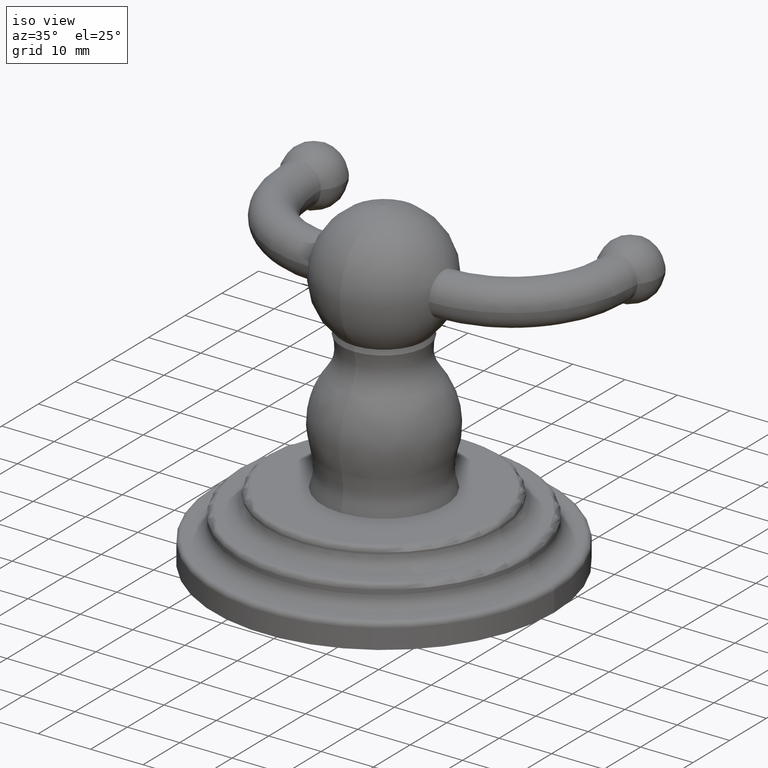
[diagram: clean part render]
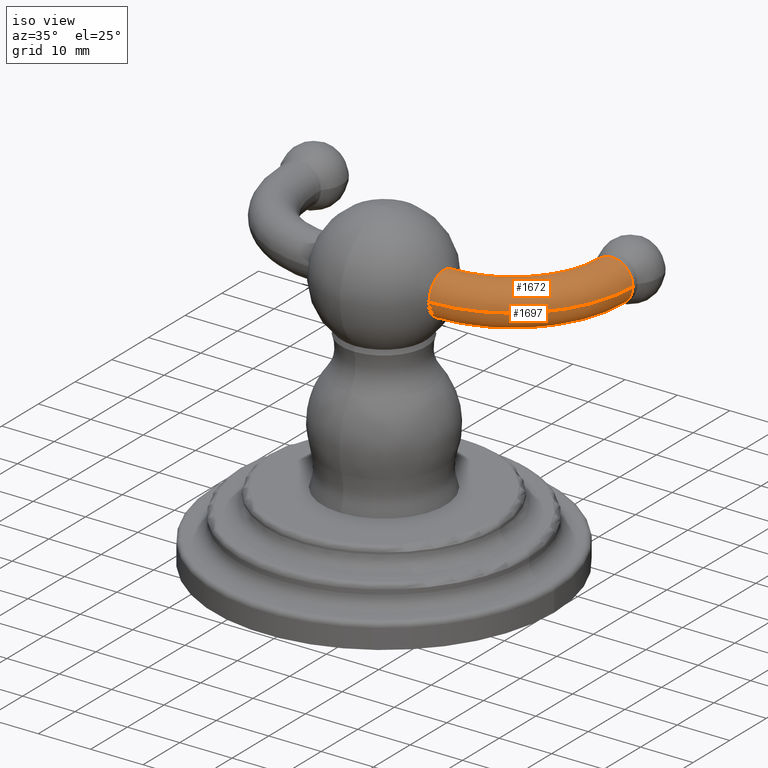
[diagram: same view with one multi-face feature highlighted, each face labeled with its STEP entity id]
A machine part, iso view. The highlighted faces form ONE feature: a constant-radius fillet chain: 2 tangent blend faces with common blend radius 4.0005 mm. The faces share edges in the B-rep.
Their STEP definitions:
[1] entity #1672 (Torus):
#668=CARTESIAN_POINT('',(4.481169236489E-1,1.575316563088E-1,1.947E0));
#669=CARTESIAN_POINT('',(4.481169236489E-1,1.575316563088E-1,1.955967580570E0));
#670=CARTESIAN_POINT('',(4.481170588089E-1,1.560209085654E-1,1.973417424200E0));
#671=CARTESIAN_POINT('',(4.481176207747E-1,1.496445510945E-1,1.998330654038E0));
#672=CARTESIAN_POINT('',(4.481184720196E-1,1.397175509616E-1,2.021131951390E0));
#673=CARTESIAN_POINT('',(4.481195601022E-1,1.265412111369E-1,2.041876586669E0));
#674=CARTESIAN_POINT('',(4.481208343643E-1,1.103675058395E-1,2.060269137305E0));
#675=CARTESIAN_POINT('',(4.481222316709E-1,9.164301840083E-2,2.075887647518E0));
#676=CARTESIAN_POINT('',(4.481237099900E-1,7.060381457947E-2,2.088510431310E0));
#677=CARTESIAN_POINT('',(4.481252021869E-1,4.795832278045E-2,2.097686955568E0));
#678=CARTESIAN_POINT('',(4.481266650665E-1,2.424989611638E-2,2.103256951497E0));
#679=CARTESIAN_POINT('',(4.481280641730E-1,3.404500046922E-5,2.105120015455E0));
#680=CARTESIAN_POINT('',(4.481293747826E-1,-2.415297950481E-2,
2.103262983074E0));
#681=CARTESIAN_POINT('',(4.481305829183E-1,-4.786400804184E-2,
2.097701372621E0));
#682=CARTESIAN_POINT('',(4.481316719486E-1,-7.051012071034E-2,
2.088531207823E0));
#683=CARTESIAN_POINT('',(4.481326308359E-1,-9.153684132768E-2,
2.075925573406E0));
#684=CARTESIAN_POINT('',(4.481334453194E-1,-1.102562344410E-1,
2.060326934470E0));
#685=CARTESIAN_POINT('',(4.481341215507E-1,-1.264364918595E-1,
2.041946848681E0));
#686=CARTESIAN_POINT('',(4.481346547289E-1,-1.396271137012E-1,
2.021207655565E0));
#687=CARTESIAN_POINT('',(4.481350467498E-1,-1.495793359329E-1,
1.998372509497E0));
#688=CARTESIAN_POINT('',(4.481352936381E-1,-1.559626857629E-1,
1.973455985663E0));
#689=CARTESIAN_POINT('',(4.481353517216E-1,-1.574792257327E-1,
1.955981758078E0));
#690=CARTESIAN_POINT('',(4.481353517216E-1,-1.574792257327E-1,1.947E0));
#722=CARTESIAN_POINT('',(4.42E-1,7.485E-1,1.947E0));
#723=DIRECTION('',(0.E0,0.E0,1.E0));
#724=DIRECTION('',(1.035012461750E-2,-9.999464360257E-1,0.E0));
#725=AXIS2_PLACEMENT_3D('',#722,#723,#724);
#730=CARTESIAN_POINT('',(4.42E-1,7.485E-1,1.947E0));
#731=DIRECTION('',(0.E0,0.E0,1.E0));
#732=DIRECTION('',(6.771911392472E-3,-9.999770703452E-1,0.E0));
#733=AXIS2_PLACEMENT_3D('',#730,#731,#732);
#785=CARTESIAN_POINT('',(1.1905E0,7.485E-1,1.947E0));
#786=DIRECTION('',(0.E0,1.E0,0.E0));
#787=DIRECTION('',(-1.E0,0.E0,0.E0));
#788=AXIS2_PLACEMENT_3D('',#785,#786,#787);
#944=CARTESIAN_POINT('',(1.033E0,7.485E-1,1.947E0));
#945=CARTESIAN_POINT('',(1.348E0,7.485E-1,1.947E0));
#946=VERTEX_POINT('',#944);
#947=VERTEX_POINT('',#945);
#954=VERTEX_POINT('',#668);
#955=VERTEX_POINT('',#690);
#1658=CARTESIAN_POINT('',(4.42E-1,7.485E-1,1.947E0));
#1659=DIRECTION('',(0.E0,0.E0,1.E0));
#1660=DIRECTION('',(0.E0,1.E0,0.E0));
#1661=AXIS2_PLACEMENT_3D('',#1658,#1659,#1660);
#1662=TOROIDAL_SURFACE('',#1661,7.485E-1,1.575E-1);
#1663=ORIENTED_EDGE('',*,*,#1644,.F.);
#1665=ORIENTED_EDGE('',*,*,#1664,.T.);
#1667=ORIENTED_EDGE('',*,*,#1666,.T.);
#1669=ORIENTED_EDGE('',*,*,#1668,.F.);
#1670=EDGE_LOOP('',(#1663,#1665,#1667,#1669));
#1671=FACE_OUTER_BOUND('',#1670,.F.);
#691=B_SPLINE_CURVE_WITH_KNOTS('',3,(#668,#669,#670,#671,#672,#673,#674,#675,
#676,#677,#678,#679,#680,#681,#682,#683,#684,#685,#686,#687,#688,#689,#690),
.UNSPECIFIED.,.F.,.F.,(4,1,1,1,1,1,1,1,1,1,1,1,1,1,1,1,1,1,1,1,4),(0.E0,5.E-2,
1.E-1,1.5E-1,2.E-1,2.5E-1,3.E-1,3.5E-1,4.E-1,4.5E-1,5.E-1,5.5E-1,6.E-1,6.5E-1,
7.E-1,7.5E-1,8.E-1,8.5E-1,9.E-1,9.5E-1,1.E0),.UNSPECIFIED.);
#726=CIRCLE('',#725,5.91E-1);
#734=CIRCLE('',#733,9.06E-1);
#789=CIRCLE('',#788,1.575E-1);
#1644=EDGE_CURVE('',#954,#955,#691,.T.);
#1664=EDGE_CURVE('',#954,#946,#726,.T.);
#1666=EDGE_CURVE('',#946,#947,#789,.T.);
#1668=EDGE_CURVE('',#955,#947,#734,.T.);
#1672=ADVANCED_FACE('',(#1671),#1662,.T.);
[2] entity #1697 (Torus):
#668=CARTESIAN_POINT('',(4.481169236489E-1,1.575316563088E-1,1.947E0));
#690=CARTESIAN_POINT('',(4.481353517216E-1,-1.574792257327E-1,1.947E0));
#695=CARTESIAN_POINT('',(4.481353517216E-1,-1.574792257327E-1,1.947E0));
#696=CARTESIAN_POINT('',(4.481353517216E-1,-1.574792257327E-1,
1.938658155801E0));
#697=CARTESIAN_POINT('',(4.481353017375E-1,-1.561743332301E-1,
1.922145345705E0));
#698=CARTESIAN_POINT('',(4.481350724949E-1,-1.502412109547E-1,
1.897601907309E0));
#699=CARTESIAN_POINT('',(4.481346893453E-1,-1.404956631907E-1,
1.874403018102E0));
#700=CARTESIAN_POINT('',(4.481341573441E-1,-1.273078786380E-1,
1.853198587995E0));
#701=CARTESIAN_POINT('',(4.481334828421E-1,-1.111364430561E-1,
1.834521192037E0));
#702=CARTESIAN_POINT('',(4.481326667570E-1,-9.234231651445E-2,
1.818634644166E0));
#703=CARTESIAN_POINT('',(4.481317034501E-1,-7.118018308584E-2,
1.805789962108E0));
#704=CARTESIAN_POINT('',(4.481306059739E-1,-4.832617121932E-2,
1.796433096134E0));
#705=CARTESIAN_POINT('',(4.481293882701E-1,-2.440486213785E-2,
1.790763293130E0));
#706=CARTESIAN_POINT('',(4.481280639498E-1,4.316065333288E-5,1.788867709007E0));
#707=CARTESIAN_POINT('',(4.481266524557E-1,2.446560710461E-2,1.790765874476E0));
#708=CARTESIAN_POINT('',(4.481251749052E-1,4.839124056467E-2,1.796437327371E0));
#709=CARTESIAN_POINT('',(4.481236667881E-1,7.124212117487E-2,1.805796387158E0));
#710=CARTESIAN_POINT('',(4.481221778630E-1,9.238751167222E-2,1.818632114794E0));
#711=CARTESIAN_POINT('',(4.481207730397E-1,1.111675268765E-1,1.834502072416E0));
#712=CARTESIAN_POINT('',(4.481194952443E-1,1.273454786410E-1,1.853178325159E0));
#713=CARTESIAN_POINT('',(4.481184022449E-1,1.405459665081E-1,1.874397409373E0));
#714=CARTESIAN_POINT('',(4.481175638204E-1,1.502965458127E-1,1.897610754184E0));
#715=CARTESIAN_POINT('',(4.481170403429E-1,1.562270144220E-1,1.922149388120E0));
#716=CARTESIAN_POINT('',(4.481169236489E-1,1.575316563088E-1,1.938660092992E0));
#717=CARTESIAN_POINT('',(4.481169236489E-1,1.575316563088E-1,1.947E0));
#722=CARTESIAN_POINT('',(4.42E-1,7.485E-1,1.947E0));
#723=DIRECTION('',(0.E0,0.E0,1.E0));
#724=DIRECTION('',(1.035012461750E-2,-9.999464360257E-1,0.E0));
#725=AXIS2_PLACEMENT_3D('',#722,#723,#724);
#730=CARTESIAN_POINT('',(4.42E-1,7.485E-1,1.947E0));
#731=DIRECTION('',(0.E0,0.E0,1.E0));
#732=DIRECTION('',(6.771911392472E-3,-9.999770703452E-1,0.E0));
#733=AXIS2_PLACEMENT_3D('',#730,#731,#732);
#746=CARTESIAN_POINT('',(1.1905E0,7.485E-1,1.947E0));
#747=DIRECTION('',(0.E0,1.E0,0.E0));
#748=DIRECTION('',(1.E0,0.E0,0.E0));
#749=AXIS2_PLACEMENT_3D('',#746,#747,#748);
#944=CARTESIAN_POINT('',(1.033E0,7.485E-1,1.947E0));
#945=CARTESIAN_POINT('',(1.348E0,7.485E-1,1.947E0));
#946=VERTEX_POINT('',#944);
#947=VERTEX_POINT('',#945);
#954=VERTEX_POINT('',#668);
#955=VERTEX_POINT('',#690);
#1685=CARTESIAN_POINT('',(4.42E-1,7.485E-1,1.947E0));
#1686=DIRECTION('',(0.E0,0.E0,1.E0));
#1687=DIRECTION('',(0.E0,1.E0,0.E0));
#1688=AXIS2_PLACEMENT_3D('',#1685,#1686,#1687);
#1689=TOROIDAL_SURFACE('',#1688,7.485E-1,1.575E-1);
#1690=ORIENTED_EDGE('',*,*,#1646,.F.);
#1691=ORIENTED_EDGE('',*,*,#1668,.T.);
#1693=ORIENTED_EDGE('',*,*,#1692,.T.);
#1694=ORIENTED_EDGE('',*,*,#1664,.F.);
#1695=EDGE_LOOP('',(#1690,#1691,#1693,#1694));
#1696=FACE_OUTER_BOUND('',#1695,.F.);
#718=B_SPLINE_CURVE_WITH_KNOTS('',3,(#695,#696,#697,#698,#699,#700,#701,#702,
#703,#704,#705,#706,#707,#708,#709,#710,#711,#712,#713,#714,#715,#716,#717),
.UNSPECIFIED.,.F.,.F.,(4,1,1,1,1,1,1,1,1,1,1,1,1,1,1,1,1,1,1,1,4),(0.E0,5.E-2,
1.E-1,1.5E-1,2.E-1,2.5E-1,3.E-1,3.5E-1,4.E-1,4.5E-1,5.E-1,5.5E-1,6.E-1,6.5E-1,
7.E-1,7.5E-1,8.E-1,8.5E-1,9.E-1,9.5E-1,1.E0),.UNSPECIFIED.);
#726=CIRCLE('',#725,5.91E-1);
#734=CIRCLE('',#733,9.06E-1);
#750=CIRCLE('',#749,1.575E-1);
#1646=EDGE_CURVE('',#955,#954,#718,.T.);
#1664=EDGE_CURVE('',#954,#946,#726,.T.);
#1668=EDGE_CURVE('',#955,#947,#734,.T.);
#1692=EDGE_CURVE('',#947,#946,#750,.T.);
#1697=ADVANCED_FACE('',(#1696),#1689,.T.);